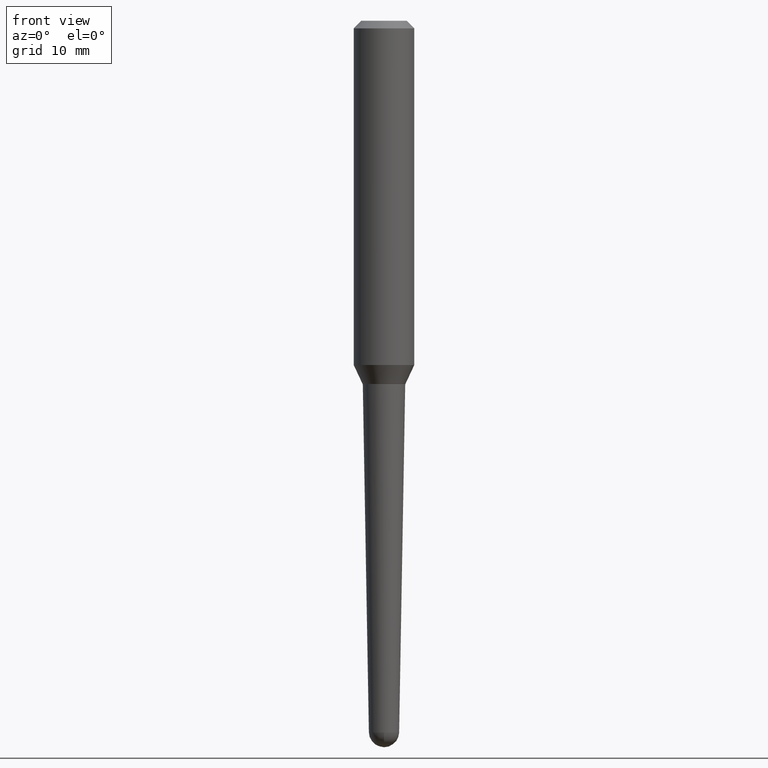
[diagram: clean part render]
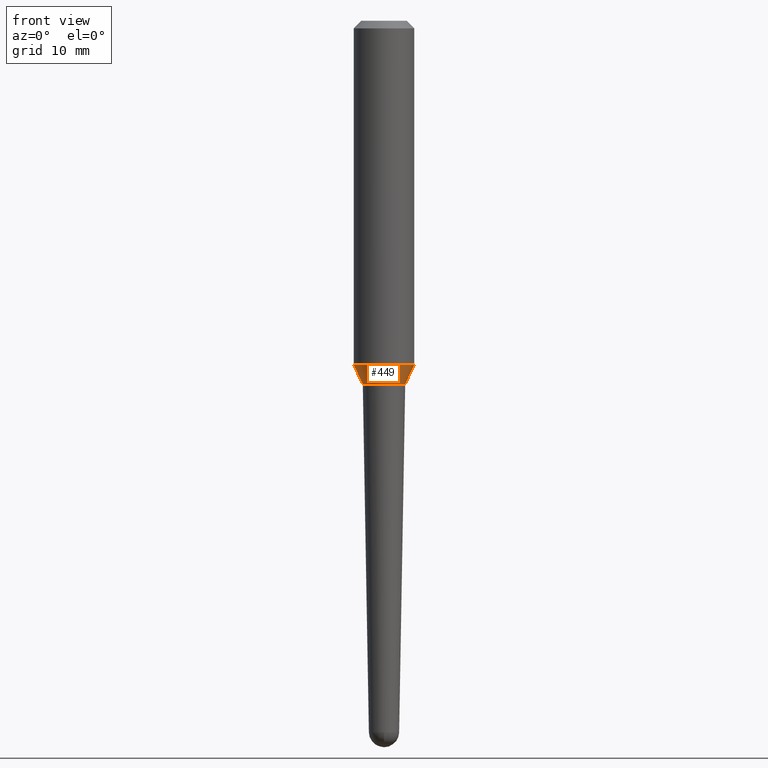
[diagram: same view with one face highlighted and labeled with its STEP entity id]
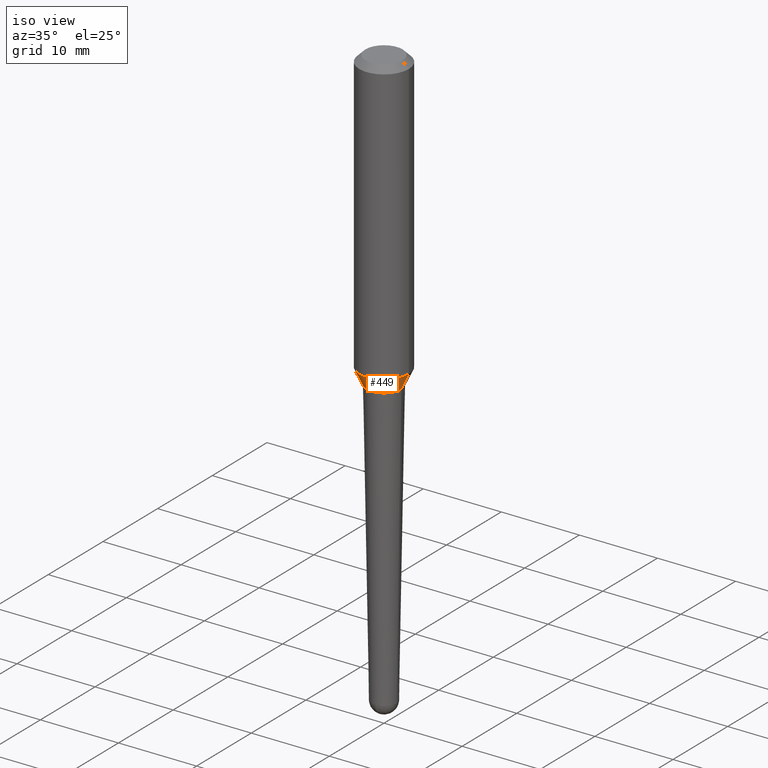
[diagram: same view with one face highlighted and labeled with its STEP entity id]
A machine part, front view. The second image highlights one B-rep face of the part: STEP entity #449.
A second angle (iso view) of the same face is appended — the face is thin or edge-on in the first view.
In plain terms, the highlighted conical surface has half-angle 25 deg.
Its self-contained STEP definition (entity closure, byte-faithful):
#21 = CARTESIAN_POINT ( 'NONE',  ( 3.476093222021523677E-29, -4.962939860885091843E-15, -1.421442470756407950 ) ) ;
#27 = DIRECTION ( 'NONE',  ( -2.445468806185136597E-29, 3.491481338843145583E-15, 1.000000000000000000 ) ) ;
#38 = VERTEX_POINT ( 'NONE', #154 ) ;
#70 = VECTOR ( 'NONE', #441, 39.37007874015748143 ) ;
#94 = CARTESIAN_POINT ( 'NONE',  ( 0.1250000000000001665, -5.835810195595875971E-15, -1.421442470756407950 ) ) ;
#121 = ORIENTED_EDGE ( 'NONE', *, *, #236, .T. ) ;
#124 = VERTEX_POINT ( 'NONE', #447 ) ;
#127 = ORIENTED_EDGE ( 'NONE', *, *, #130, .F. ) ;
#129 = CARTESIAN_POINT ( 'NONE',  ( 0.08860117633705663631, -5.854174975156063626E-15, -1.499500000000000277 ) ) ;
#130 = EDGE_CURVE ( 'NONE', #124, #177, #209, .T. ) ;
#136 = DIRECTION ( 'NONE',  ( -2.445468806185136597E-29, 3.491481338843145583E-15, 1.000000000000000000 ) ) ;
#139 = CONICAL_SURFACE ( 'NONE', #309, 0.08860117633705663631, 0.4363323129985682836 ) ;
#154 = CARTESIAN_POINT ( 'NONE',  ( -0.08860117633705663631, -4.605927045334344517E-15, -1.499500000000000277 ) ) ;
#161 = LINE ( 'NONE', #375, #70 ) ;
#174 = DIRECTION ( 'NONE',  ( 1.000000000000000000, -6.982962677686268288E-15, 0.000000000000000000 ) ) ;
#177 = VERTEX_POINT ( 'NONE', #94 ) ;
#199 = DIRECTION ( 'NONE',  ( 1.000000000000000000, -6.982962677686268288E-15, 0.000000000000000000 ) ) ;
#201 = LINE ( 'NONE', #345, #416 ) ;
#209 = CIRCLE ( 'NONE', #315, 0.1250000000000001665 ) ;
#220 = EDGE_CURVE ( 'NONE', #229, #177, #161, .T. ) ;
#229 = VERTEX_POINT ( 'NONE', #129 ) ;
#236 = EDGE_CURVE ( 'NONE', #38, #229, #369, .T. ) ;
#272 = DIRECTION ( 'NONE',  ( -0.4226182617406867292, 6.167240084480767403E-15, 0.9063077870366559319 ) ) ;
#282 = EDGE_CURVE ( 'NONE', #38, #124, #201, .T. ) ;
#309 = AXIS2_PLACEMENT_3D ( 'NONE', #387, #136, #174 ) ;
#315 = AXIS2_PLACEMENT_3D ( 'NONE', #21, #335, #373 ) ;
#323 = AXIS2_PLACEMENT_3D ( 'NONE', #406, #27, #199 ) ;
#335 = DIRECTION ( 'NONE',  ( -2.445468806185136597E-29, 3.491481338843145583E-15, 1.000000000000000000 ) ) ;
#336 = ORIENTED_EDGE ( 'NONE', *, *, #282, .F. ) ;
#345 = CARTESIAN_POINT ( 'NONE',  ( -0.08860117633705663631, -4.605927045334344517E-15, -1.499500000000000277 ) ) ;
#351 = FACE_OUTER_BOUND ( 'NONE', #405, .T. ) ;
#369 = CIRCLE ( 'NONE', #323, 0.08860117633705663631 ) ;
#373 = DIRECTION ( 'NONE',  ( 1.000000000000000000, -6.982962677686269077E-15, 0.000000000000000000 ) ) ;
#375 = CARTESIAN_POINT ( 'NONE',  ( 0.08860117633705663631, -5.854174975156063626E-15, -1.499500000000000277 ) ) ;
#377 = ORIENTED_EDGE ( 'NONE', *, *, #220, .T. ) ;
#387 = CARTESIAN_POINT ( 'NONE',  ( 3.666980474874613215E-29, -5.235476267595297462E-15, -1.499500000000000277 ) ) ;
#405 = EDGE_LOOP ( 'NONE', ( #336, #121, #377, #127 ) ) ;
#406 = CARTESIAN_POINT ( 'NONE',  ( 3.666980474874613215E-29, -5.235476267595297462E-15, -1.499500000000000277 ) ) ;
#416 = VECTOR ( 'NONE', #272, 39.37007874015748143 ) ;
#441 = DIRECTION ( 'NONE',  ( 0.4226182617406867292, 2.132291770428506099E-16, 0.9063077870366559319 ) ) ;
#447 = CARTESIAN_POINT ( 'NONE',  ( -0.1250000000000001665, -4.074761441184965033E-15, -1.421442470756407950 ) ) ;
#449 = ADVANCED_FACE ( 'NONE', ( #351 ), #139, .T. ) ;